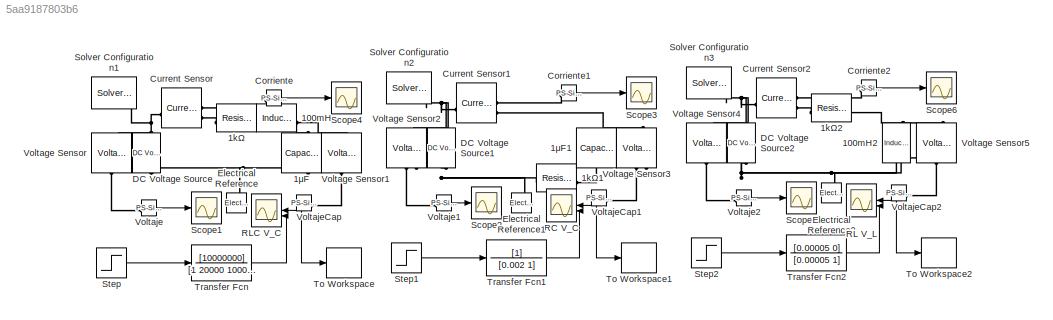
MODEL slx_5aa9187803b6
KIND model
CONFIG AbsTol = 1e-3
CONFIG EnableMultiTasking = off
CONFIG FixedStep = auto
CONFIG MaxStep = auto
CONFIG MinStep = auto
CONFIG RelTol = 1e-3
CONFIG SampleTimeConstraint = Unconstrained
CONFIG SolverName = VariableStepAuto
CONFIG StartTime = 0.0
CONFIG StopTime = 0.013
BLOCK [Reference] 100mH  REF=fl_lib/Electrical/Electrical Elements/Inductor
  SourceBlock = fl_lib/Electrical/Electrical Elements/Inductor
  SourceType = Inductor
BLOCK [Reference] 100mH2  REF=fl_lib/Electrical/Electrical Elements/Inductor
  NameLocation = left
  SourceBlock = fl_lib/Electrical/Electrical Elements/Inductor
  SourceType = Inductor
BLOCK [Reference] 1kΩ  REF=fl_lib/Electrical/Electrical Elements/Resistor
  SourceBlock = fl_lib/Electrical/Electrical Elements/Resistor
  SourceType = Resistor
BLOCK [Reference] 1kΩ1  REF=fl_lib/Electrical/Electrical Elements/Resistor
  NameLocation = top
  SourceBlock = fl_lib/Electrical/Electrical Elements/Resistor
  SourceType = Resistor
BLOCK [Reference] 1kΩ2  REF=fl_lib/Electrical/Electrical Elements/Resistor
  SourceBlock = fl_lib/Electrical/Electrical Elements/Resistor
  SourceType = Resistor
BLOCK [Reference] 1μF  REF=fl_lib/Electrical/Electrical Elements/Capacitor
  NameLocation = left
  SourceBlock = fl_lib/Electrical/Electrical Elements/Capacitor
  SourceType = Capacitor
BLOCK [Reference] 1μF1  REF=fl_lib/Electrical/Electrical Elements/Capacitor
  NameLocation = left
  SourceBlock = fl_lib/Electrical/Electrical Elements/Capacitor
  SourceType = Capacitor
BLOCK [Reference] Corriente  REF=nesl_utility/PS-Simulink
Converter
  SourceBlock = nesl_utility/PS-Simulink\nConverter
  SourceType = PS-Simulink\nConverter
BLOCK [Reference] Corriente1  REF=nesl_utility/PS-Simulink
Converter
  SourceBlock = nesl_utility/PS-Simulink\nConverter
  SourceType = PS-Simulink\nConverter
BLOCK [Reference] Corriente2  REF=nesl_utility/PS-Simulink
Converter
  SourceBlock = nesl_utility/PS-Simulink\nConverter
  SourceType = PS-Simulink\nConverter
BLOCK [Reference] Current Sensor  REF=fl_lib/Electrical/Electrical Sensors/Current Sensor
  SourceBlock = fl_lib/Electrical/Electrical Sensors/Current Sensor
  SourceType = Current Sensor
BLOCK [Reference] Current Sensor1  REF=fl_lib/Electrical/Electrical Sensors/Current Sensor
  SourceBlock = fl_lib/Electrical/Electrical Sensors/Current Sensor
  SourceType = Current Sensor
BLOCK [Reference] Current Sensor2  REF=fl_lib/Electrical/Electrical Sensors/Current Sensor
  SourceBlock = fl_lib/Electrical/Electrical Sensors/Current Sensor
  SourceType = Current Sensor
BLOCK [Reference] DC Voltage Source  REF=fl_lib/Electrical/Electrical Sources/DC Voltage Source
  NameLocation = right
  SourceBlock = fl_lib/Electrical/Electrical Sources/DC Voltage Source
  SourceType = DC Voltage Source
BLOCK [Reference] DC Voltage Source1  REF=fl_lib/Electrical/Electrical Sources/DC Voltage Source
  NameLocation = right
  SourceBlock = fl_lib/Electrical/Electrical Sources/DC Voltage Source
  SourceType = DC Voltage Source
BLOCK [Reference] DC Voltage Source2  REF=fl_lib/Electrical/Electrical Sources/DC Voltage Source
  NameLocation = right
  SourceBlock = fl_lib/Electrical/Electrical Sources/DC Voltage Source
  SourceType = DC Voltage Source
BLOCK [Reference] Electrical Reference  REF=fl_lib/Electrical/Electrical Elements/Electrical Reference
  NameLocation = right
  SourceBlock = fl_lib/Electrical/Electrical Elements/Electrical Reference
  SourceType = Electrical Reference
BLOCK [Reference] Electrical Reference1  REF=fl_lib/Electrical/Electrical Elements/Electrical Reference
  NameLocation = right
  SourceBlock = fl_lib/Electrical/Electrical Elements/Electrical Reference
  SourceType = Electrical Reference
BLOCK [Reference] Electrical Reference2  REF=fl_lib/Electrical/Electrical Elements/Electrical Reference
  NameLocation = right
  SourceBlock = fl_lib/Electrical/Electrical Elements/Electrical Reference
  SourceType = Electrical Reference
BLOCK [Scope] RC V_C
  ActiveDisplayYMaximum = 5.1
  ActiveDisplayYMinimum = -0.1
  Floating = off
  GraphicalSettings = {"AxesScalingProperties":{"AlignXAxis":"Center","AlignYAxis":"Center","AutoScaleXAxisLimits":false,"AxesScaling":"Manual","AxesScalingNumUpdates":10,"ExpandOnly":true,"ScaleAxesLimitsAtStop":false,"XAxisDataRange":100,"YAxisDataRange":80},"DisplayProperties":{"ColorOrder":["auto","auto","auto","auto","auto","auto","auto","auto","auto","auto","auto","auto","auto","auto","auto","auto","auto","auto",...<+2240ch>
  MultipleDisplayCache = [{"MaxYLimMag":5.6308,"MaxYLimReal":5.1,"MinYLimMag":0,"MinYLimReal":-0.1,"PlotAsMagnitudePhase":false,"ShowGrid":true,"ShowLegend":true,"Title":"Funcion de transferencia vs Salida del circuito","YLabel":"Voltaje"}]
  NumInputPorts = 2
  OpenAtSimulationStart = on
  ScopeFrameLocation = window
  ShowLegend = on
  ShowTimeAxisLabel = on
  Title = Funcion de transferencia vs Salida del circuito
  Visible = on
  WasSavedAsWebScope = on
  WindowPosition = [1.000000,49.000000,1536.000000,793.000000,]
  YLabel = Voltaje
BLOCK [Scope] RL V_L
  ActiveDisplayYMaximum = 4.9731
  ActiveDisplayYMinimum = -0.06065
  DataLoggingVariableName = ScopeData5
  Floating = off
  GraphicalSettings = {"Style":{"BackgroundColor":[0.12549019607843137,0.12549019607843137,0.12549019607843137],"AxesColor":[0.06666666666666667,0.06666666666666667,0.06666666666666667],"LabelsColor":[0.8509803921568627,0.8509803921568627,0.8509803921568627],"PreserveColors":false,"Visible":[true,true],"LineStyle":["-",":"],"LineWidth":[3,3],"BarWidth":[0.9,0.9],"LineColor":[[1,0.9098039215686274,0.39215686274509803],[...<+2232ch>
  MultipleDisplayCache = [{"MaxYLimMag":5.6308,"MaxYLimReal":4.9731,"MinYLimMag":0,"MinYLimReal":-0.06065,"PlotAsMagnitudePhase":false,"ShowGrid":true,"ShowLegend":true,"Title":"Funcion de transferencia vs Salida del circuito","YLabel":"Voltaje"}]
  NumInputPorts = 2
  OpenAtSimulationStart = on
  ScopeFrameLocation = window
  ShowLegend = on
  ShowTimeAxisLabel = on
  Title = Funcion de transferencia vs Salida del circuito
  Visible = on
  WasSavedAsWebScope = on
  WindowPosition = [1.000000,49.000000,1536.000000,793.000000,]
  YLabel = Voltaje
BLOCK [Scope] RLC V_C
  ActiveDisplayYMaximum = 5.1
  ActiveDisplayYMinimum = -0.09999999999999995
  DataLoggingVariableName = ScopeData2
  Floating = off
  GraphicalSettings = {"AxesScalingProperties":{"AlignXAxis":"Center","AlignYAxis":"Center","AutoScaleXAxisLimits":false,"AxesScaling":"Manual","AxesScalingNumUpdates":10,"ExpandOnly":true,"ScaleAxesLimitsAtStop":false,"XAxisDataRange":100,"YAxisDataRange":90},"DisplayProperties":{"ColorOrder":["auto","auto","auto","auto","auto","auto","auto","auto","auto","auto","auto","auto","auto","auto","auto","auto","auto","auto",...<+2509ch>
  MultipleDisplayCache = [{"MaxYLimMag":5.6177,"MaxYLimReal":5.1,"MinYLimMag":0,"MinYLimReal":-0.09999999999999995,"PlotAsMagnitudePhase":false,"ShowGrid":true,"ShowLegend":true,"Title":"Respuesta al escalon 5u(t) del circuito RLC","YLabel":"Voltaje"}]
  NumInputPorts = 2
  OpenAtSimulationStart = on
  ScopeFrameLocation = window
  ShowLegend = on
  ShowTimeAxisLabel = on
  TimeAxisLabels = All
  Title = Respuesta al escalon 5u(t) del circuito RLC
  WasSavedAsWebScope = on
  WindowPosition = [1.000000,49.000000,1536.000000,793.000000,]
  YLabel = Voltaje
BLOCK [Scope] Scope1
  ActiveDisplayYMaximum = 6
  ActiveDisplayYMinimum = 4
  DataLoggingVariableName = ScopeData1
  Floating = off
  GraphicalSettings = {"GraphicalSettings":{"LegacySettings":true,"Style":{"AxesScalingProperties":{"AlignXAxis":"Center","AlignYAxis":"Center","AutoScaleXAxisLimits":false,"AxesScaling":"Manual","AxesScalingNumUpdates":10,"ScaleAxesLimitsAtStop":true,"XAxisDataRange":100,"YAxisDataRange":80},"Style":{"AxesColor":"[0.0705882352941176 0.0705882352941176 0.0705882352941176]","BackgroundColor":"[0.129411764705882 0.129411...<+633ch>  <repeated x3 — deduplicated; at blocks: Scope1, Scope2, Scope5>
  LayoutDimensionsString = [1 1]
  MultipleDisplayCache = [{"MaxYLimMag":6,"MaxYLimReal":6,"MinYLimMag":4,"MinYLimReal":4,"PlotAsMagnitudePhase":false,"ShowGrid":true,"ShowLegend":true,"Title":"Grafica de voltaje.","YLabel":"Voltaje"}]  <repeated x3 — deduplicated; at blocks: Scope1, Scope2, Scope5>
  NumInputPorts = 1
  ShowLegend = on
  ShowTimeAxisLabel = on
  TimeAxisLabels = All
  Title = Grafica de voltaje.
  WasSavedAsWebScope = on
  WindowPosition = [680 330 560 447]
  YLabel = Voltaje
BLOCK [Scope] Scope2
  ActiveDisplayYMaximum = 6
  ActiveDisplayYMinimum = 4
  DataLoggingVariableName = ScopeData3
  Floating = off
  LayoutDimensionsString = [1 1]
  NumInputPorts = 1
  ShowLegend = on
  ShowTimeAxisLabel = on
  TimeAxisLabels = All
  Title = Grafica de voltaje.
  WasSavedAsWebScope = on
  WindowPosition = [680 330 560 447]
  YLabel = Voltaje
BLOCK [Scope] Scope3
  ActiveDisplayYMaximum = 0.0034773
  ActiveDisplayYMinimum = -0.0019994
  DataLoggingVariableName = ScopeData4
  DisplayFullPath = on
  Floating = off
  GraphicalSettings = {"GraphicalSettings":{"LegacySettings":true,"Style":{"AxesScalingProperties":{"AlignXAxis":"Center","AlignYAxis":"Center","AutoScaleXAxisLimits":false,"AxesScaling":"Manual","AxesScalingNumUpdates":10,"ScaleAxesLimitsAtStop":false,"XAxisDataRange":100,"YAxisDataRange":80},"Style":{"AxesColor":"[0.0705882352941176 0.0705882352941176 0.0705882352941176]","BackgroundColor":"[0.129411764705882 0.12941...<+634ch>  <repeated x3 — deduplicated; at blocks: Scope3, Scope4, Scope6>
  LayoutDimensionsString = [1 1]
  MaximizeAxes = Auto
  MultipleDisplayCache = [{"MaxYLimMag":10,"MaxYLimReal":0.0034773,"MinYLimMag":0,"MinYLimReal":-0.0019994,"PlotAsMagnitudePhase":false,"ShowGrid":true,"ShowLegend":true,"Title":"Grafica de corriente","YLabel":"Intensidad"}]  <repeated x3 — deduplicated; at blocks: Scope3, Scope4, Scope6>
  NumInputPorts = 1
  ShowLegend = on
  ShowTimeAxisLabel = on
  Title = Grafica de corriente
  WasSavedAsWebScope = on
  WindowPosition = [962 50 958 457]
  YLabel = Intensidad
BLOCK [Scope] Scope4
  ActiveDisplayYMaximum = 0.0034773
  ActiveDisplayYMinimum = -0.0019994
  DataLoggingVariableName = ScopeData1
  DisplayFullPath = on
  Floating = off
  LayoutDimensionsString = [1 1]
  MaximizeAxes = Auto
  NumInputPorts = 1
  ShowLegend = on
  ShowTimeAxisLabel = on
  Title = Grafica de corriente
  WasSavedAsWebScope = on
  WindowPosition = [1 49 1536 793]
  YLabel = Intensidad
BLOCK [Scope] Scope5
  ActiveDisplayYMaximum = 6
  ActiveDisplayYMinimum = 4
  DataLoggingVariableName = ScopeData6
  Floating = off
  LayoutDimensionsString = [1 1]
  NumInputPorts = 1
  ShowLegend = on
  ShowTimeAxisLabel = on
  TimeAxisLabels = All
  Title = Grafica de voltaje.
  WasSavedAsWebScope = on
  WindowPosition = [680 330 560 447]
  YLabel = Voltaje
BLOCK [Scope] Scope6
  ActiveDisplayYMaximum = 0.0034773
  ActiveDisplayYMinimum = -0.0019994
  DataLoggingVariableName = ScopeData7
  DisplayFullPath = on
  Floating = off
  LayoutDimensionsString = [1 1]
  MaximizeAxes = Auto
  NumInputPorts = 1
  ShowLegend = on
  ShowTimeAxisLabel = on
  Title = Grafica de corriente
  WasSavedAsWebScope = on
  WindowPosition = [962 50 958 457]
  YLabel = Intensidad
BLOCK [Reference] Solver Configuration1  REF=nesl_utility/Solver
Configuration
  SourceBlock = nesl_utility/Solver\nConfiguration
  SourceType = Solver\nConfiguration
BLOCK [Reference] Solver Configuration2  REF=nesl_utility/Solver
Configuration
  SourceBlock = nesl_utility/Solver\nConfiguration
  SourceType = Solver\nConfiguration
BLOCK [Reference] Solver Configuration3  REF=nesl_utility/Solver
Configuration
  SourceBlock = nesl_utility/Solver\nConfiguration
  SourceType = Solver\nConfiguration
BLOCK [Step] Step
  After = 5
  SampleTime = 0
  Time = 0
BLOCK [Step] Step1
  After = 5
  SampleTime = 0
  Time = 0
BLOCK [Step] Step2
  After = 5
  SampleTime = 0
  Time = 0
BLOCK [ToWorkspace] To Workspace
  FixptAsFi = on
  MaxDataPoints = inf
  SampleTime = -1
  SaveFormat = Timeseries
  VariableName = RLC_vc
BLOCK [ToWorkspace] To Workspace1
  FixptAsFi = on
  MaxDataPoints = inf
  SampleTime = -1
  SaveFormat = Timeseries
  VariableName = vc1
BLOCK [ToWorkspace] To Workspace2
  FixptAsFi = on
  MaxDataPoints = inf
  SampleTime = -1
  SaveFormat = Timeseries
  VariableName = vc2
BLOCK [TransferFcn] Transfer Fcn
  Denominator = [1 20000 10000000]
  Numerator = [10000000]
BLOCK [TransferFcn] Transfer Fcn1
  Denominator = [0.002 1]
BLOCK [TransferFcn] Transfer Fcn2
  Denominator = [0.00005 1]
  Numerator = [0.00005 0]
BLOCK [Reference] Voltage Sensor  REF=fl_lib/Electrical/Electrical Sensors/Voltage Sensor
  NameLocation = right
  SourceBlock = fl_lib/Electrical/Electrical Sensors/Voltage Sensor
  SourceType = Voltage Sensor
BLOCK [Reference] Voltage Sensor1  REF=fl_lib/Electrical/Electrical Sensors/Voltage Sensor
  NameLocation = right
  SourceBlock = fl_lib/Electrical/Electrical Sensors/Voltage Sensor
  SourceType = Voltage Sensor
BLOCK [Reference] Voltage Sensor2  REF=fl_lib/Electrical/Electrical Sensors/Voltage Sensor
  NameLocation = right
  SourceBlock = fl_lib/Electrical/Electrical Sensors/Voltage Sensor
  SourceType = Voltage Sensor
BLOCK [Reference] Voltage Sensor3  REF=fl_lib/Electrical/Electrical Sensors/Voltage Sensor
  NameLocation = right
  SourceBlock = fl_lib/Electrical/Electrical Sensors/Voltage Sensor
  SourceType = Voltage Sensor
BLOCK [Reference] Voltage Sensor4  REF=fl_lib/Electrical/Electrical Sensors/Voltage Sensor
  NameLocation = right
  SourceBlock = fl_lib/Electrical/Electrical Sensors/Voltage Sensor
  SourceType = Voltage Sensor
BLOCK [Reference] Voltage Sensor5  REF=fl_lib/Electrical/Electrical Sensors/Voltage Sensor
  NameLocation = right
  SourceBlock = fl_lib/Electrical/Electrical Sensors/Voltage Sensor
  SourceType = Voltage Sensor
BLOCK [Reference] Voltaje  REF=nesl_utility/PS-Simulink
Converter
  SourceBlock = nesl_utility/PS-Simulink\nConverter
  SourceType = PS-Simulink\nConverter
BLOCK [Reference] Voltaje1  REF=nesl_utility/PS-Simulink
Converter
  SourceBlock = nesl_utility/PS-Simulink\nConverter
  SourceType = PS-Simulink\nConverter
BLOCK [Reference] Voltaje2  REF=nesl_utility/PS-Simulink
Converter
  SourceBlock = nesl_utility/PS-Simulink\nConverter
  SourceType = PS-Simulink\nConverter
BLOCK [Reference] VoltajeCap  REF=nesl_utility/PS-Simulink
Converter
  NameLocation = top
  SourceBlock = nesl_utility/PS-Simulink\nConverter
  SourceType = PS-Simulink\nConverter
BLOCK [Reference] VoltajeCap1  REF=nesl_utility/PS-Simulink
Converter
  NameLocation = top
  SourceBlock = nesl_utility/PS-Simulink\nConverter
  SourceType = PS-Simulink\nConverter
BLOCK [Reference] VoltajeCap2  REF=nesl_utility/PS-Simulink
Converter
  NameLocation = top
  SourceBlock = nesl_utility/PS-Simulink\nConverter
  SourceType = PS-Simulink\nConverter
LINE Corriente1:1 -> Scope3:1
LINE Corriente2:1 -> Scope6:1
LINE Corriente:1 -> Scope4:1
LINE Step1:1 -> Transfer Fcn1:1
LINE Step2:1 -> Transfer Fcn2:1
LINE Step:1 -> Transfer Fcn:1
LINE Transfer Fcn1:1 -> RC V_C:2
LINE Transfer Fcn2:1 -> RL V_L:2
LINE Transfer Fcn:1 -> RLC V_C:2
LINE Voltaje1:1 -> Scope2:1
LINE Voltaje2:1 -> Scope5:1
LINE Voltaje:1 -> Scope1:1
NET VoltajeCap1:1 -> RC V_C:1, To Workspace1:1
NET VoltajeCap2:1 -> RL V_L:1, To Workspace2:1
NET VoltajeCap:1 -> RLC V_C:1, To Workspace:1
PNET net1: 100mH2:LConn1 -- 1kΩ2:RConn1 -- Voltage Sensor5:LConn1
PNET net2: 100mH2:RConn1 -- DC Voltage Source2:RConn1 -- Electrical Reference2:LConn1 -- Voltage Sensor4:RConn2 -- Voltage Sensor5:RConn2
PLINE 100mH:LConn1 -- 1kΩ:RConn1
PNET net3: 100mH:RConn1 -- 1μF:LConn1 -- Voltage Sensor1:LConn1
PNET net4: 1kΩ1:LConn1 -- DC Voltage Source1:RConn1 -- Electrical Reference1:LConn1 -- Voltage Sensor2:RConn2
PNET net5: 1kΩ1:RConn1 -- 1μF1:RConn1 -- Voltage Sensor3:RConn2
PLINE 1kΩ2:LConn1 -- Current Sensor2:RConn2
PLINE 1kΩ:LConn1 -- Current Sensor:RConn2
PNET net6: 1μF1:LConn1 -- Current Sensor1:RConn2 -- Voltage Sensor3:LConn1
PNET net7: 1μF:RConn1 -- DC Voltage Source:RConn1 -- Electrical Reference:LConn1 -- Voltage Sensor1:RConn2 -- Voltage Sensor:RConn2
PLINE Corriente1:LConn1 -- Current Sensor1:RConn1
PLINE Corriente2:LConn1 -- Current Sensor2:RConn1
PLINE Corriente:LConn1 -- Current Sensor:RConn1
PNET net8: Current Sensor1:LConn1 -- DC Voltage Source1:LConn1 -- Solver Configuration2:RConn1 -- Voltage Sensor2:LConn1
PNET net9: Current Sensor2:LConn1 -- DC Voltage Source2:LConn1 -- Solver Configuration3:RConn1 -- Voltage Sensor4:LConn1
PNET net10: Current Sensor:LConn1 -- DC Voltage Source:LConn1 -- Solver Configuration1:RConn1 -- Voltage Sensor:LConn1
PLINE Voltage Sensor1:RConn1 -- VoltajeCap:LConn1
PLINE Voltage Sensor2:RConn1 -- Voltaje1:LConn1
PLINE Voltage Sensor3:RConn1 -- VoltajeCap1:LConn1
PLINE Voltage Sensor4:RConn1 -- Voltaje2:LConn1
PLINE Voltage Sensor5:RConn1 -- VoltajeCap2:LConn1
PLINE Voltage Sensor:RConn1 -- Voltaje:LConn1
note: NET lines group one-source signal fan-out (src -> all destinations, sorted); 1:1 wires keep LINE; PNET lines group multi-terminal physical nets as a canonical sorted terminal list (undirected conserving connections); 2-terminal nets keep the pairwise PLINE form
